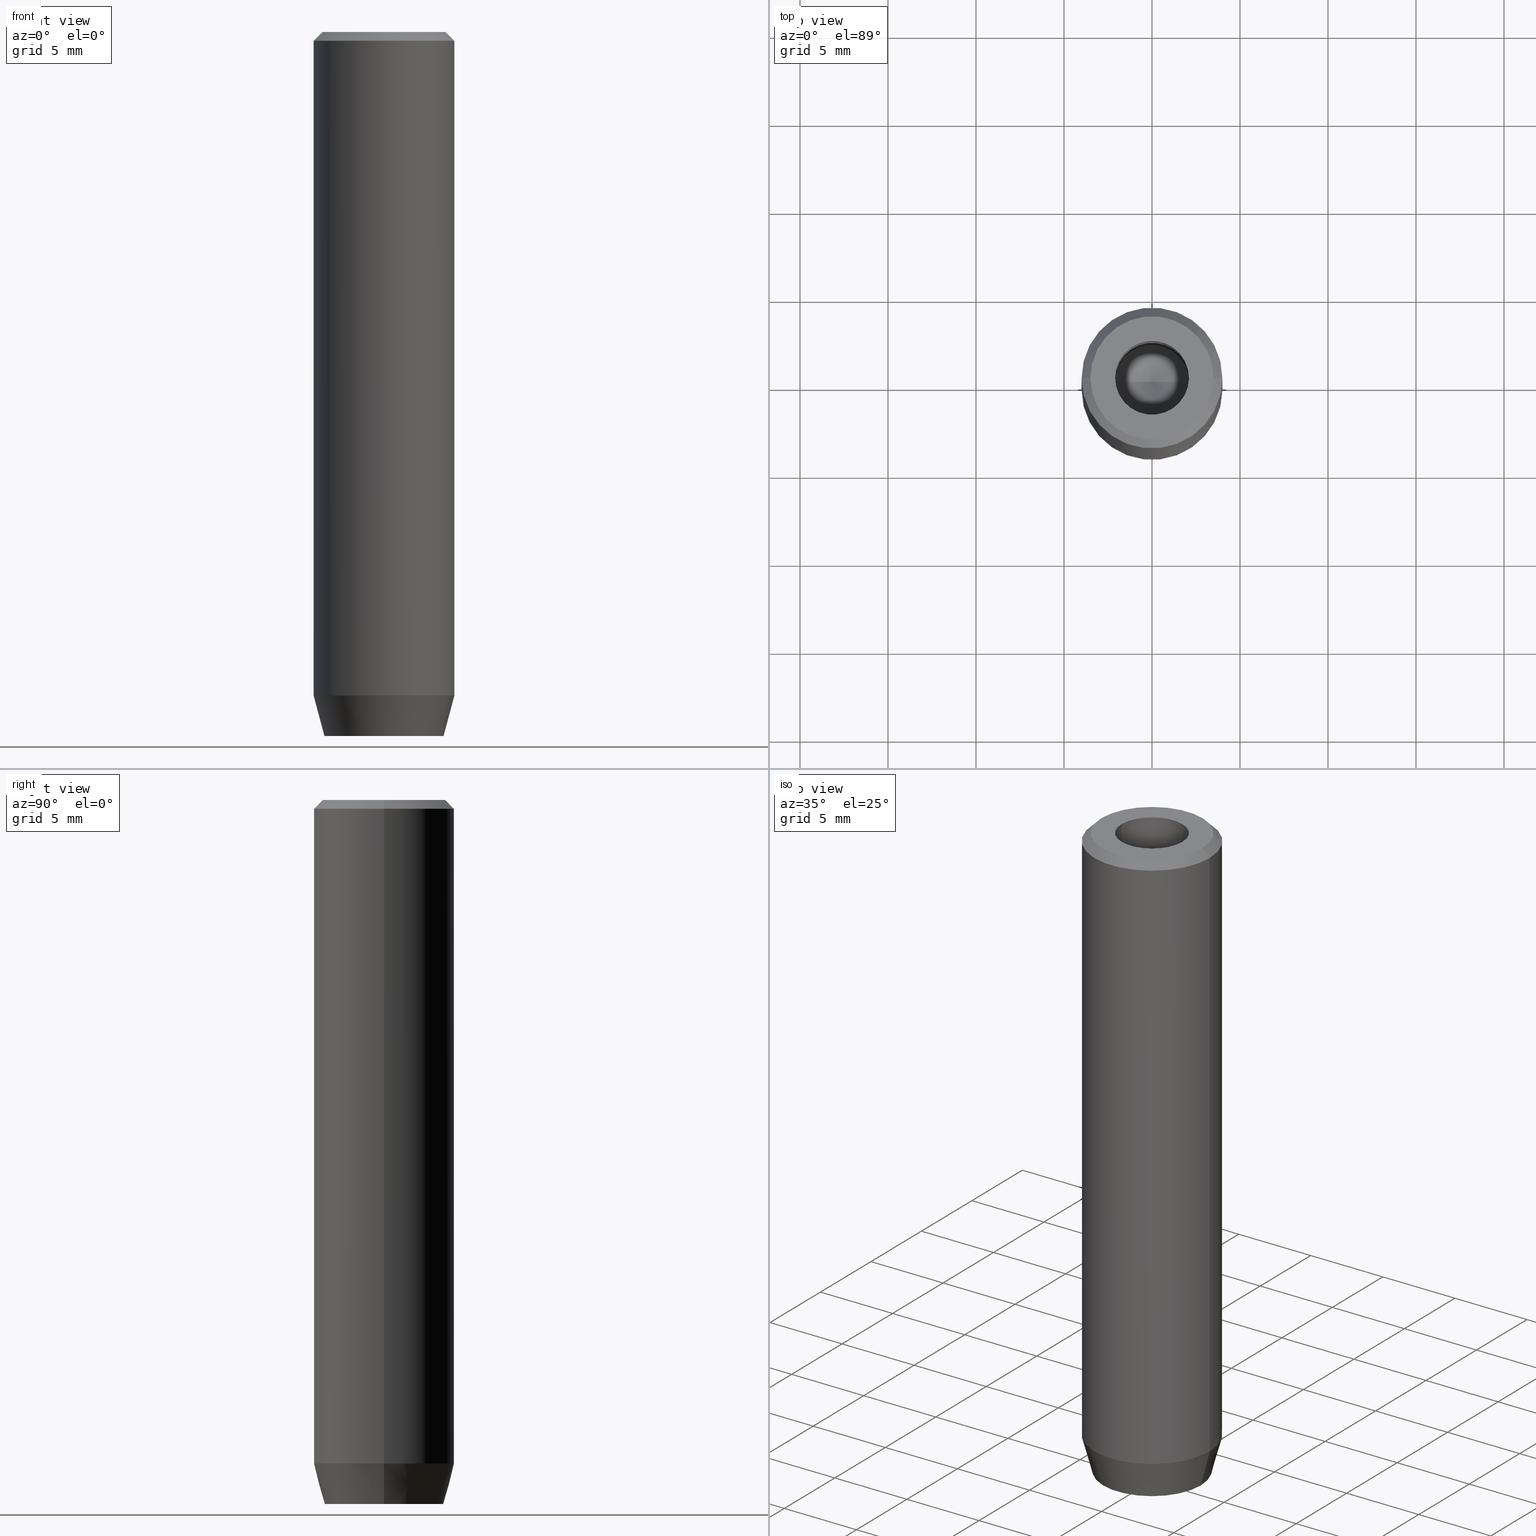
[diagram: canonical four-view strip — front | top / right | iso, engineering-drawing reading convention]
A machine part, canonical four-view strip (front | top / right | iso — engineering-drawing reading convention). The complete STEP part file that produces these views, byte-faithful:
ISO-10303-21;
HEADER;
FILE_DESCRIPTION (( 'STEP AP203' ),
    '1' );
FILE_NAME ('4024.STEP',
    '2024-01-02T23:09:57',
    ( '' ),
    ( '' ),
    'SwSTEP 2.0',
    'SolidWorks 2019',
    '' );
FILE_SCHEMA (( 'CONFIG_CONTROL_DESIGN' ));
ENDSEC;

DATA;
#1 = MECHANICAL_CONTEXT ( 'NONE', #405, 'mechanical' ) ;
#2 = ORIENTED_EDGE ( 'NONE', *, *, #181, .F. ) ;
#3 = PRODUCT ( '4024', '4024', '', ( #1 ) ) ;
#4 = EDGE_CURVE ( 'NONE', #275, #267, #427, .T. ) ;
#5 = CARTESIAN_POINT ( 'NONE',  ( 0.9999999999999997780, -1.732050807568878747, -37.20000000000000284 ) ) ;
#6 = ORIENTED_EDGE ( 'NONE', *, *, #553, .T. ) ;
#7 = SHAPE_DEFINITION_REPRESENTATION ( #325, #195 ) ;
#8 = DIRECTION ( 'NONE',  ( -0.000000000000000000, -0.000000000000000000, 1.000000000000000000 ) ) ;
#9 = ORIENTED_EDGE ( 'NONE', *, *, #339, .F. ) ;
#10 = VECTOR ( 'NONE', #544, 1000.000000000000114 ) ;
#11 = APPROVAL_PERSON_ORGANIZATION ( #485, #63, #286 ) ;
#12 = CARTESIAN_POINT ( 'NONE',  ( -1.999999999999998224, 1.126735949052866956E-15, -37.20000000000000284 ) ) ;
#13 = EDGE_CURVE ( 'NONE', #365, #407, #334, .T. ) ;
#14 = ORIENTED_EDGE ( 'NONE', *, *, #120, .T. ) ;
#15 = APPROVAL_DATE_TIME ( #460, #76 ) ;
#16 = DIRECTION ( 'NONE',  ( -0.000000000000000000, -0.000000000000000000, 1.000000000000000000 ) ) ;
#17 = COORDINATED_UNIVERSAL_TIME_OFFSET ( 1, 0, .AHEAD. ) ;
#18 = ORIENTED_EDGE ( 'NONE', *, *, #100, .T. ) ;
#19 = ADVANCED_FACE ( 'NONE', ( #465 ), #64, .F. ) ;
#20 = VECTOR ( 'NONE', #191, 1000.000000000000000 ) ;
#21 = CARTESIAN_POINT ( 'NONE',  ( 3.383716857408415102, 0.000000000000000000, -40.00000000000000000 ) ) ;
#22 = DIRECTION ( 'NONE',  ( -0.000000000000000000, -0.000000000000000000, -1.000000000000000000 ) ) ;
#23 = CARTESIAN_POINT ( 'NONE',  ( -1.000000000000000222, -1.732050807568877637, -37.20000000000000284 ) ) ;
#24 = CARTESIAN_POINT ( 'NONE',  ( 2.000000000000000888, -1.154700538379252572, -37.20000000000000284 ) ) ;
#25 = AXIS2_PLACEMENT_3D ( 'NONE', #497, #189, #538 ) ;
#26 = CARTESIAN_POINT ( 'NONE',  ( 2.099999999999998757, 0.000000000000000000, -1.990051048614449116E-16 ) ) ;
#27 = CC_DESIGN_DATE_AND_TIME_ASSIGNMENT ( #165, #335, ( #347 ) ) ;
#28 = PLANE ( 'NONE',  #344 ) ;
#29 = ORIENTED_EDGE ( 'NONE', *, *, #245, .T. ) ;
#30 = CARTESIAN_POINT ( 'NONE',  ( -4.000000000000000000, 4.898587196589412829E-16, -37.69999999999999574 ) ) ;
#31 = FACE_OUTER_BOUND ( 'NONE', #468, .T. ) ;
#32 = EDGE_LOOP ( 'NONE', ( #119, #324, #581, #350 ) ) ;
#33 = CARTESIAN_POINT ( 'NONE',  ( -1.999999999999998668, -1.154700538379252572, -40.00000000000000000 ) ) ;
#34 = CARTESIAN_POINT ( 'NONE',  ( 2.000000000000000888, 0.000000000000000000, -37.20000000000000284 ) ) ;
#35 = ORIENTED_EDGE ( 'NONE', *, *, #141, .T. ) ;
#36 = EDGE_CURVE ( 'NONE', #360, #455, #105, .T. ) ;
#37 = CARTESIAN_POINT ( 'NONE',  ( -2.099999999999998757, 2.571758278209439985E-16, -1.990051048614449116E-16 ) ) ;
#38 = AXIS2_PLACEMENT_3D ( 'NONE', #135, #319, #322 ) ;
#39 = CARTESIAN_POINT ( 'NONE',  ( 0.000000000000000000, 0.000000000000000000, 0.000000000000000000 ) ) ;
#40 = VERTEX_POINT ( 'NONE', #150 ) ;
#41 = PERSON_AND_ORGANIZATION_ROLE ( 'classification_officer' ) ;
#42 = CARTESIAN_POINT ( 'NONE',  ( -1.000000000000000222, -1.732050807568877637, -40.00000000000000000 ) ) ;
#43 = DIRECTION ( 'NONE',  ( 0.000000000000000000, 0.000000000000000000, 1.000000000000000000 ) ) ;
#44 = ORIENTED_EDGE ( 'NONE', *, *, #205, .F. ) ;
#45 = CARTESIAN_POINT ( 'NONE',  ( -3.383716857408415102, 4.521222607617784483E-16, -40.00000000000000000 ) ) ;
#46 = ORIENTED_EDGE ( 'NONE', *, *, #51, .T. ) ;
#47 = PERSON_AND_ORGANIZATION ( #67, #294 ) ;
#48 = CARTESIAN_POINT ( 'NONE',  ( 4.000000000000000000, 0.000000000000000000, 0.000000000000000000 ) ) ;
#49 = APPLICATION_PROTOCOL_DEFINITION ( 'international standard', 'config_control_design', 1994, #405 ) ;
#50 = ORIENTED_EDGE ( 'NONE', *, *, #311, .T. ) ;
#51 = EDGE_CURVE ( 'NONE', #262, #111, #400, .T. ) ;
#52 = AXIS2_PLACEMENT_3D ( 'NONE', #272, #182, #137 ) ;
#53 = DIRECTION ( 'NONE',  ( -0.000000000000000000, -0.000000000000000000, 1.000000000000000000 ) ) ;
#54 = APPROVAL_STATUS ( 'not_yet_approved' ) ;
#55 = ORIENTED_EDGE ( 'NONE', *, *, #251, .F. ) ;
#56 = CYLINDRICAL_SURFACE ( 'NONE', #25, 2.099999999999997868 ) ;
#57 = VERTEX_POINT ( 'NONE', #21 ) ;
#58 = ADVANCED_FACE ( 'NONE', ( #473 ), #380, .F. ) ;
#59 = DIRECTION ( 'NONE',  ( -1.000000000000000000, 5.633679745264339711E-16, 0.000000000000000000 ) ) ;
#60 = PERSON_AND_ORGANIZATION ( #67, #294 ) ;
#61 = EDGE_LOOP ( 'NONE', ( #277, #295, #147, #458 ) ) ;
#62 = VECTOR ( 'NONE', #352, 1000.000000000000000 ) ;
#63 = APPROVAL ( #481, 'NEUR�EN�' ) ;
#64 = PLANE ( 'NONE',  #140 ) ;
#65 = APPROVAL_STATUS ( 'not_yet_approved' ) ;
#66 = LINE ( 'NONE', #248, #510 ) ;
#67 = PERSON ( 'NEUR�EN�', 'NEUR�EN�', 'NEUR�EN�', ('NEUR�EN�'), ('NEUR�EN�'), ('NEUR�EN�') ) ;
#68 = DIRECTION ( 'NONE',  ( 0.000000000000000000, 0.000000000000000000, -1.000000000000000000 ) ) ;
#69 = DIRECTION ( 'NONE',  ( -0.000000000000000000, -0.000000000000000000, 1.000000000000000000 ) ) ;
#70 = CARTESIAN_POINT ( 'NONE',  ( -4.000000000000000000, 4.898587196589412829E-16, 0.000000000000000000 ) ) ;
#71 = EDGE_CURVE ( 'NONE', #479, #455, #343, .T. ) ;
#72 = CARTESIAN_POINT ( 'NONE',  ( 4.000000000000000000, 0.000000000000000000, -37.69999999999999574 ) ) ;
#73 = PERSON_AND_ORGANIZATION ( #67, #294 ) ;
#74 = VECTOR ( 'NONE', #290, 1000.000000000000000 ) ;
#75 = AXIS2_PLACEMENT_3D ( 'NONE', #12, #59, #441 ) ;
#76 = APPROVAL ( #65, 'NEUR�EN�' ) ;
#77 = DIRECTION ( 'NONE',  ( 1.000000000000000000, 0.000000000000000000, 0.000000000000000000 ) ) ;
#78 = CARTESIAN_POINT ( 'NONE',  ( -1.999999999999998224, 1.126735949052866956E-15, -40.00000000000000000 ) ) ;
#79 = ORIENTED_EDGE ( 'NONE', *, *, #396, .T. ) ;
#80 = DIRECTION ( 'NONE',  ( -0.000000000000000000, -0.000000000000000000, 1.000000000000000000 ) ) ;
#81 = DIRECTION ( 'NONE',  ( 0.8660254037844385966, -0.5000000000000001110, 0.000000000000000000 ) ) ;
#82 = EDGE_CURVE ( 'NONE', #234, #111, #206, .T. ) ;
#83 = DIRECTION ( 'NONE',  ( 1.000000000000000000, 0.000000000000000000, 0.000000000000000000 ) ) ;
#84 = CYLINDRICAL_SURFACE ( 'NONE', #87, 4.000000000000000000 ) ;
#85 = EDGE_LOOP ( 'NONE', ( #138, #439 ) ) ;
#86 = DIRECTION ( 'NONE',  ( -0.000000000000000000, -0.000000000000000000, 1.000000000000000000 ) ) ;
#87 = AXIS2_PLACEMENT_3D ( 'NONE', #213, #161, #118 ) ;
#88 = CARTESIAN_POINT ( 'NONE',  ( 1.000000000000000444, 1.732050807568877637, -40.00000000000000000 ) ) ;
#89 = AXIS2_PLACEMENT_3D ( 'NONE', #313, #535, #349 ) ;
#90 = CARTESIAN_POINT ( 'NONE',  ( 2.099999999999996980, 0.000000000000000000, -12.50000000000000000 ) ) ;
#91 = DIRECTION ( 'NONE',  ( 1.000000000000000000, 0.000000000000000000, 0.000000000000000000 ) ) ;
#92 = ORIENTED_EDGE ( 'NONE', *, *, #100, .F. ) ;
#93 = EDGE_CURVE ( 'NONE', #224, #407, #509, .T. ) ;
#94 = CARTESIAN_POINT ( 'NONE',  ( 1.000000000000000444, 1.732050807568877637, -37.20000000000000284 ) ) ;
#95 = ORIENTED_EDGE ( 'NONE', *, *, #366, .T. ) ;
#96 = DIRECTION ( 'NONE',  ( 0.000000000000000000, -1.000000000000000000, 0.000000000000000000 ) ) ;
#97 = ORIENTED_EDGE ( 'NONE', *, *, #114, .T. ) ;
#98 = CYLINDRICAL_SURFACE ( 'NONE', #293, 4.000000000000000000 ) ;
#99 = ORIENTED_EDGE ( 'NONE', *, *, #396, .F. ) ;
#100 = EDGE_CURVE ( 'NONE', #504, #224, #66, .T. ) ;
#101 = DIRECTION ( 'NONE',  ( -0.000000000000000000, -0.000000000000000000, -1.000000000000000000 ) ) ;
#102 = ORIENTED_EDGE ( 'NONE', *, *, #537, .F. ) ;
#103 = MANIFOLD_SOLID_BREP ( 'Vrt�k z�vitn�ku pro M5 z�vit1', #540 ) ;
#104 = CARTESIAN_POINT ( 'NONE',  ( -1.999999999999997780, 1.154700538379253238, -37.20000000000000284 ) ) ;
#105 = LINE ( 'NONE', #514, #409 ) ;
#106 = LOCAL_TIME ( 0, 9, 57.00000000000000000, #130 ) ;
#107 = AXIS2_PLACEMENT_3D ( 'NONE', #34, #432, #309 ) ;
#108 = ORIENTED_EDGE ( 'NONE', *, *, #366, .F. ) ;
#109 = ADVANCED_FACE ( 'NONE', ( #200 ), #152, .F. ) ;
#110 = VERTEX_POINT ( 'NONE', #26 ) ;
#111 = VERTEX_POINT ( 'NONE', #306 ) ;
#112 = CIRCLE ( 'NONE', #327, 2.099999999999996980 ) ;
#113 = ORIENTED_EDGE ( 'NONE', *, *, #278, .F. ) ;
#114 = EDGE_CURVE ( 'NONE', #284, #214, #301, .T. ) ;
#115 = LINE ( 'NONE', #72, #250 ) ;
#116 = EDGE_LOOP ( 'NONE', ( #35, #184, #452, #395 ) ) ;
#117 = CARTESIAN_POINT ( 'NONE',  ( -1.999999999999998224, 1.126735949052866956E-15, -37.20000000000000284 ) ) ;
#118 = DIRECTION ( 'NONE',  ( 1.000000000000000000, 0.000000000000000000, 0.000000000000000000 ) ) ;
#119 = ORIENTED_EDGE ( 'NONE', *, *, #278, .T. ) ;
#120 = EDGE_CURVE ( 'NONE', #247, #229, #303, .T. ) ;
#121 = CARTESIAN_POINT ( 'NONE',  ( 0.000000000000000000, 0.000000000000000000, -37.20000000000000284 ) ) ;
#122 = DIRECTION ( 'NONE',  ( -0.000000000000000000, -0.000000000000000000, 1.000000000000000000 ) ) ;
#123 = ORIENTED_EDGE ( 'NONE', *, *, #498, .T. ) ;
#124 = CALENDAR_DATE ( 2024, 3, 1 ) ;
#125 = CARTESIAN_POINT ( 'NONE',  ( 0.000000000000000000, 0.000000000000000000, -40.00000000000000000 ) ) ;
#126 = CC_DESIGN_PERSON_AND_ORGANIZATION_ASSIGNMENT ( #60, #421, ( #565 ) ) ;
#127 = CARTESIAN_POINT ( 'NONE',  ( 2.099999999999997868, 0.000000000000000000, 0.000000000000000000 ) ) ;
#128 = DIRECTION ( 'NONE',  ( 1.000000000000000000, 0.000000000000000000, 0.000000000000000000 ) ) ;
#129 = PLANE ( 'NONE',  #107 ) ;
#130 = COORDINATED_UNIVERSAL_TIME_OFFSET ( 1, 0, .AHEAD. ) ;
#131 = LINE ( 'NONE', #48, #144 ) ;
#132 = VECTOR ( 'NONE', #96, 1000.000000000000000 ) ;
#133 = EDGE_LOOP ( 'NONE', ( #561, #44, #376, #559 ) ) ;
#134 = CC_DESIGN_PERSON_AND_ORGANIZATION_ASSIGNMENT ( #467, #246, ( #347 ) ) ;
#135 = CARTESIAN_POINT ( 'NONE',  ( 0.000000000000000000, 0.000000000000000000, -37.69999999999999574 ) ) ;
#136 = ORIENTED_EDGE ( 'NONE', *, *, #578, .T. ) ;
#137 = DIRECTION ( 'NONE',  ( 1.000000000000000000, 0.000000000000000000, 0.000000000000000000 ) ) ;
#138 = ORIENTED_EDGE ( 'NONE', *, *, #141, .F. ) ;
#139 = CARTESIAN_POINT ( 'NONE',  ( 3.500000000000003109, 4.286263797015740046E-16, 0.000000000000000000 ) ) ;
#140 = AXIS2_PLACEMENT_3D ( 'NONE', #23, #156, #424 ) ;
#141 = EDGE_CURVE ( 'NONE', #57, #371, #491, .T. ) ;
#142 =( NAMED_UNIT ( * ) PLANE_ANGLE_UNIT ( ) SI_UNIT ( $, .RADIAN. ) );
#143 = ORIENTED_EDGE ( 'NONE', *, *, #578, .F. ) ;
#144 = VECTOR ( 'NONE', #239, 1000.000000000000000 ) ;
#145 = APPROVAL_PERSON_ORGANIZATION ( #73, #76, #423 ) ;
#146 = LINE ( 'NONE', #505, #353 ) ;
#147 = ORIENTED_EDGE ( 'NONE', *, *, #560, .T. ) ;
#148 = CC_DESIGN_DATE_AND_TIME_ASSIGNMENT ( #448, #230, ( #577 ) ) ;
#149 = LINE ( 'NONE', #104, #211 ) ;
#150 = CARTESIAN_POINT ( 'NONE',  ( -1.999999999999997780, 1.154700538379253238, -37.20000000000000284 ) ) ;
#151 = EDGE_LOOP ( 'NONE', ( #329, #554, #381, #282 ) ) ;
#152 = CONICAL_SURFACE ( 'NONE', #477, 2.099999999999996980, 1.029744258676653201 ) ;
#153 = CONICAL_SURFACE ( 'NONE', #314, 3.500000000000003109, 0.7853981633974517207 ) ;
#154 = EDGE_CURVE ( 'NONE', #371, #234, #355, .T. ) ;
#155 = DIRECTION ( 'NONE',  ( -0.000000000000000000, -0.000000000000000000, -1.000000000000000000 ) ) ;
#156 = DIRECTION ( 'NONE',  ( -0.5000000000000000000, -0.8660254037844387076, 0.000000000000000000 ) ) ;
#157 = ORIENTED_EDGE ( 'NONE', *, *, #260, .T. ) ;
#158 = ADVANCED_FACE ( 'NONE', ( #207, #486 ), #567, .T. ) ;
#159 = VECTOR ( 'NONE', #168, 1000.000000000000000 ) ;
#160 = DIRECTION ( 'NONE',  ( 5.633679745264339711E-16, 1.000000000000000000, 0.000000000000000000 ) ) ;
#161 = DIRECTION ( 'NONE',  ( -0.000000000000000000, -0.000000000000000000, 1.000000000000000000 ) ) ;
#162 = FACE_OUTER_BOUND ( 'NONE', #399, .T. ) ;
#163 = DIRECTION ( 'NONE',  ( -0.8660254037844387076, 0.5000000000000001110, 0.000000000000000000 ) ) ;
#164 = VERTEX_POINT ( 'NONE', #33 ) ;
#165 = DATE_AND_TIME ( #508, #209 ) ;
#166 = PLANE ( 'NONE',  #501 ) ;
#167 = DESIGN_CONTEXT ( 'detailed design', #169, 'design' ) ;
#168 = DIRECTION ( 'NONE',  ( -0.8571673007021116675, 1.049727191138617833E-16, 0.5150380749100552658 ) ) ;
#169 = APPLICATION_CONTEXT ( 'configuration controlled 3d designs of mechanical parts and assemblies' ) ;
#170 = CIRCLE ( 'NONE', #256, 4.000000000000000000 ) ;
#171 = EDGE_CURVE ( 'NONE', #371, #57, #502, .T. ) ;
#172 = VECTOR ( 'NONE', #259, 1000.000000000000000 ) ;
#173 = PLANE ( 'NONE',  #244 ) ;
#174 = LINE ( 'NONE', #78, #453 ) ;
#175 = VERTEX_POINT ( 'NONE', #534 ) ;
#176 = CARTESIAN_POINT ( 'NONE',  ( 0.000000000000000000, 0.000000000000000000, 0.000000000000000000 ) ) ;
#177 = CARTESIAN_POINT ( 'NONE',  ( 0.000000000000000000, 2.309401076758503812, -40.00000000000000000 ) ) ;
#178 = ORIENTED_EDGE ( 'NONE', *, *, #300, .T. ) ;
#179 = DIRECTION ( 'NONE',  ( 0.8571673007021116675, 0.000000000000000000, 0.5150380749100552658 ) ) ;
#180 =( NAMED_UNIT ( * ) SI_UNIT ( $, .STERADIAN. ) SOLID_ANGLE_UNIT ( ) );
#181 = EDGE_CURVE ( 'NONE', #175, #40, #573, .T. ) ;
#182 = DIRECTION ( 'NONE',  ( -0.000000000000000000, -0.000000000000000000, 1.000000000000000000 ) ) ;
#183 = AXIS2_PLACEMENT_3D ( 'NONE', #566, #122, #568 ) ;
#184 = ORIENTED_EDGE ( 'NONE', *, *, #154, .T. ) ;
#185 = CC_DESIGN_APPROVAL ( #63, ( #577 ) ) ;
#186 = CARTESIAN_POINT ( 'NONE',  ( 0.000000000000000000, 0.000000000000000000, 0.000000000000000000 ) ) ;
#187 = ORIENTED_EDGE ( 'NONE', *, *, #36, .F. ) ;
#188 = EDGE_CURVE ( 'NONE', #471, #234, #170, .T. ) ;
#189 = DIRECTION ( 'NONE',  ( -0.000000000000000000, -0.000000000000000000, 1.000000000000000000 ) ) ;
#190 = ORIENTED_EDGE ( 'NONE', *, *, #426, .F. ) ;
#191 = DIRECTION ( 'NONE',  ( 0.8660254037844385966, -0.5000000000000001110, 0.000000000000000000 ) ) ;
#192 = ORIENTED_EDGE ( 'NONE', *, *, #300, .F. ) ;
#193 = VECTOR ( 'NONE', #333, 1000.000000000000114 ) ;
#194 = AXIS2_PLACEMENT_3D ( 'NONE', #522, #302, #475 ) ;
#195 = ADVANCED_BREP_SHAPE_REPRESENTATION ( '4024', ( #103, #305 ), #315 ) ;
#196 = CARTESIAN_POINT ( 'NONE',  ( 2.168404344971008868E-16, -2.309401076758503812, -40.00000000000000000 ) ) ;
#197 = VERTEX_POINT ( 'NONE', #443 ) ;
#198 = ORIENTED_EDGE ( 'NONE', *, *, #171, .T. ) ;
#199 = ADVANCED_FACE ( 'NONE', ( #531, #162 ), #173, .T. ) ;
#200 = FACE_OUTER_BOUND ( 'NONE', #539, .T. ) ;
#201 = CALENDAR_DATE ( 2024, 3, 1 ) ;
#202 = AXIS2_PLACEMENT_3D ( 'NONE', #125, #86, #215 ) ;
#203 = COORDINATED_UNIVERSAL_TIME_OFFSET ( 1, 0, .AHEAD. ) ;
#204 = EDGE_LOOP ( 'NONE', ( #572, #494, #331, #518 ) ) ;
#205 = EDGE_CURVE ( 'NONE', #229, #247, #442, .T. ) ;
#206 = LINE ( 'NONE', #70, #362 ) ;
#207 = FACE_BOUND ( 'NONE', #273, .T. ) ;
#208 = DIRECTION ( 'NONE',  ( 0.8660254037844388186, 0.4999999999999996669, 0.000000000000000000 ) ) ;
#209 = LOCAL_TIME ( 0, 9, 57.00000000000000000, #203 ) ;
#210 = VECTOR ( 'NONE', #22, 1000.000000000000000 ) ;
#211 = VECTOR ( 'NONE', #377, 1000.000000000000000 ) ;
#212 = DIRECTION ( 'NONE',  ( 1.000000000000000000, 0.000000000000000000, 0.000000000000000000 ) ) ;
#213 = CARTESIAN_POINT ( 'NONE',  ( 0.000000000000000000, 0.000000000000000000, 0.000000000000000000 ) ) ;
#214 = VERTEX_POINT ( 'NONE', #37 ) ;
#215 = DIRECTION ( 'NONE',  ( 1.000000000000000000, 0.000000000000000000, 0.000000000000000000 ) ) ;
#216 = FACE_OUTER_BOUND ( 'NONE', #133, .T. ) ;
#217 = EDGE_CURVE ( 'NONE', #111, #262, #269, .T. ) ;
#218 = DIRECTION ( 'NONE',  ( -0.000000000000000000, -0.000000000000000000, 1.000000000000000000 ) ) ;
#219 = CARTESIAN_POINT ( 'NONE',  ( -1.000000000000000444, 1.732050807568877637, -37.20000000000000284 ) ) ;
#220 = ORIENTED_EDGE ( 'NONE', *, *, #93, .F. ) ;
#221 = VECTOR ( 'NONE', #160, 1000.000000000000000 ) ;
#222 = CARTESIAN_POINT ( 'NONE',  ( 0.000000000000000000, 0.000000000000000000, 0.000000000000000000 ) ) ;
#223 = CARTESIAN_POINT ( 'NONE',  ( 0.000000000000000000, 0.000000000000000000, 0.000000000000000000 ) ) ;
#224 = VERTEX_POINT ( 'NONE', #489 ) ;
#225 = ADVANCED_FACE ( 'NONE', ( #271 ), #166, .F. ) ;
#226 = CARTESIAN_POINT ( 'NONE',  ( -2.099999999999996980, 2.571758278209438013E-16, -12.50000000000000000 ) ) ;
#227 = ORIENTED_EDGE ( 'NONE', *, *, #93, .T. ) ;
#228 = LINE ( 'NONE', #139, #10 ) ;
#229 = VERTEX_POINT ( 'NONE', #527 ) ;
#230 = DATE_TIME_ROLE ( 'classification_date' ) ;
#231 = VECTOR ( 'NONE', #288, 1000.000000000000114 ) ;
#232 = CARTESIAN_POINT ( 'NONE',  ( 2.000000000000000888, 1.154700538379251462, -40.00000000000000000 ) ) ;
#233 = CIRCLE ( 'NONE', #401, 2.099999999999996980 ) ;
#234 = VERTEX_POINT ( 'NONE', #30 ) ;
#235 = ADVANCED_FACE ( 'NONE', ( #254 ), #521, .T. ) ;
#236 = DIRECTION ( 'NONE',  ( 1.000000000000000000, 0.000000000000000000, 0.000000000000000000 ) ) ;
#237 = APPROVAL_ROLE ( '' ) ;
#238 = ORIENTED_EDGE ( 'NONE', *, *, #291, .T. ) ;
#239 = DIRECTION ( 'NONE',  ( -0.000000000000000000, -0.000000000000000000, 1.000000000000000000 ) ) ;
#240 = APPLICATION_PROTOCOL_DEFINITION ( 'international standard', 'config_control_design', 1994, #169 ) ;
#241 = EDGE_LOOP ( 'NONE', ( #525, #97, #95, #298 ) ) ;
#242 = LINE ( 'NONE', #459, #193 ) ;
#243 = ORIENTED_EDGE ( 'NONE', *, *, #321, .T. ) ;
#244 = AXIS2_PLACEMENT_3D ( 'NONE', #176, #348, #570 ) ;
#245 = EDGE_CURVE ( 'NONE', #57, #471, #115, .T. ) ;
#246 = PERSON_AND_ORGANIZATION_ROLE ( 'creator' ) ;
#247 = VERTEX_POINT ( 'NONE', #582 ) ;
#248 = CARTESIAN_POINT ( 'NONE',  ( 2.000000000000000888, -1.154700538379252572, -37.20000000000000284 ) ) ;
#249 = ORIENTED_EDGE ( 'NONE', *, *, #205, .T. ) ;
#250 = VECTOR ( 'NONE', #433, 1000.000000000000000 ) ;
#251 = EDGE_CURVE ( 'NONE', #267, #224, #328, .T. ) ;
#252 = ORIENTED_EDGE ( 'NONE', *, *, #82, .T. ) ;
#253 = DIRECTION ( 'NONE',  ( 0.8660254037844385966, 0.5000000000000001110, 0.000000000000000000 ) ) ;
#254 = FACE_OUTER_BOUND ( 'NONE', #447, .T. ) ;
#255 = LINE ( 'NONE', #392, #418 ) ;
#256 = AXIS2_PLACEMENT_3D ( 'NONE', #351, #440, #128 ) ;
#257 = PERSON_AND_ORGANIZATION_ROLE ( 'creator' ) ;
#258 = CC_DESIGN_SECURITY_CLASSIFICATION ( #577, ( #565 ) ) ;
#259 = DIRECTION ( 'NONE',  ( -0.2588190451025214056, 3.169619151431772953E-17, 0.9659258262890680902 ) ) ;
#260 = EDGE_CURVE ( 'NONE', #284, #197, #112, .T. ) ;
#261 = FACE_OUTER_BOUND ( 'NONE', #500, .T. ) ;
#262 = VERTEX_POINT ( 'NONE', #493 ) ;
#263 = DIRECTION ( 'NONE',  ( -1.000000000000000000, 0.000000000000000000, -0.000000000000000000 ) ) ;
#264 = DIRECTION ( 'NONE',  ( -1.000000000000000000, 0.000000000000000000, 0.000000000000000000 ) ) ;
#265 = DIRECTION ( 'NONE',  ( 1.000000000000000000, 0.000000000000000000, 0.000000000000000000 ) ) ;
#266 = DIRECTION ( 'NONE',  ( 0.4999999999999996669, -0.8660254037844388186, 0.000000000000000000 ) ) ;
#267 = VERTEX_POINT ( 'NONE', #232 ) ;
#268 = ADVANCED_FACE ( 'NONE', ( #457 ), #56, .F. ) ;
#269 = CIRCLE ( 'NONE', #586, 4.000000000000000000 ) ;
#270 = LOCAL_TIME ( 0, 9, 57.00000000000000000, #17 ) ;
#271 = FACE_OUTER_BOUND ( 'NONE', #204, .T. ) ;
#272 = CARTESIAN_POINT ( 'NONE',  ( 0.000000000000000000, 0.000000000000000000, -1.990051048614449116E-16 ) ) ;
#273 = EDGE_LOOP ( 'NONE', ( #187, #533, #113, #220, #55, #336 ) ) ;
#274 = DIRECTION ( 'NONE',  ( 0.5000000000000001110, 0.8660254037844385966, -0.000000000000000000 ) ) ;
#275 = VERTEX_POINT ( 'NONE', #359 ) ;
#276 = LINE ( 'NONE', #279, #20 ) ;
#277 = ORIENTED_EDGE ( 'NONE', *, *, #114, .F. ) ;
#278 = EDGE_CURVE ( 'NONE', #407, #164, #587, .T. ) ;
#279 = CARTESIAN_POINT ( 'NONE',  ( 1.000000000000000444, 1.732050807568877637, -37.20000000000000284 ) ) ;
#280 = ORIENTED_EDGE ( 'NONE', *, *, #339, .T. ) ;
#281 = CARTESIAN_POINT ( 'NONE',  ( 2.000000000000000888, 0.000000000000000000, -40.00000000000000000 ) ) ;
#282 = ORIENTED_EDGE ( 'NONE', *, *, #71, .T. ) ;
#283 = CC_DESIGN_PERSON_AND_ORGANIZATION_ASSIGNMENT ( #323, #499, ( #3 ) ) ;
#284 = VERTEX_POINT ( 'NONE', #226 ) ;
#285 = CIRCLE ( 'NONE', #183, 2.099999999999998757 ) ;
#286 = APPROVAL_ROLE ( '' ) ;
#287 = CC_DESIGN_APPROVAL ( #76, ( #565 ) ) ;
#288 = DIRECTION ( 'NONE',  ( -0.8660254037844388186, -0.4999999999999996114, 0.000000000000000000 ) ) ;
#289 = PERSON_AND_ORGANIZATION ( #67, #294 ) ;
#290 = DIRECTION ( 'NONE',  ( -0.000000000000000000, -0.000000000000000000, -1.000000000000000000 ) ) ;
#291 = EDGE_CURVE ( 'NONE', #197, #284, #233, .T. ) ;
#292 = DIRECTION ( 'NONE',  ( 1.000000000000000000, 0.000000000000000000, 0.000000000000000000 ) ) ;
#293 = AXIS2_PLACEMENT_3D ( 'NONE', #186, #583, #454 ) ;
#294 = ORGANIZATION ( 'NEUR�EN�', 'NEUR�EN�', '' ) ;
#295 = ORIENTED_EDGE ( 'NONE', *, *, #291, .F. ) ;
#296 = CARTESIAN_POINT ( 'NONE',  ( -2.099999999999997868, 2.571758278209438999E-16, 0.000000000000000000 ) ) ;
#297 = CARTESIAN_POINT ( 'NONE',  ( 2.000000000000000888, 0.000000000000000000, -37.20000000000000284 ) ) ;
#298 = ORIENTED_EDGE ( 'NONE', *, *, #560, .F. ) ;
#299 = CALENDAR_DATE ( 2024, 3, 1 ) ;
#300 = EDGE_CURVE ( 'NONE', #471, #262, #131, .T. ) ;
#301 = LINE ( 'NONE', #296, #585 ) ;
#302 = DIRECTION ( 'NONE',  ( -0.000000000000000000, -0.000000000000000000, 1.000000000000000000 ) ) ;
#303 = CIRCLE ( 'NONE', #528, 3.500000000000003109 ) ;
#304 = VECTOR ( 'NONE', #179, 1000.000000000000000 ) ;
#305 = AXIS2_PLACEMENT_3D ( 'NONE', #451, #43, #91 ) ;
#306 = CARTESIAN_POINT ( 'NONE',  ( -4.000000000000000000, 4.898587196589412829E-16, -0.4999999999999935052 ) ) ;
#307 = CARTESIAN_POINT ( 'NONE',  ( 0.9999999999999997780, -1.732050807568878747, -37.20000000000000284 ) ) ;
#308 = DIRECTION ( 'NONE',  ( -0.000000000000000000, -0.000000000000000000, 1.000000000000000000 ) ) ;
#309 = DIRECTION ( 'NONE',  ( -0.000000000000000000, 0.000000000000000000, -1.000000000000000000 ) ) ;
#310 = ORIENTED_EDGE ( 'NONE', *, *, #82, .F. ) ;
#311 = EDGE_CURVE ( 'NONE', #479, #275, #276, .T. ) ;
#312 = CARTESIAN_POINT ( 'NONE',  ( 0.000000000000000000, 0.000000000000000000, -0.4999999999999935052 ) ) ;
#313 = CARTESIAN_POINT ( 'NONE',  ( 0.000000000000000000, 0.000000000000000000, -37.69999999999999574 ) ) ;
#314 = AXIS2_PLACEMENT_3D ( 'NONE', #223, #529, #264 ) ;
#315 =( GEOMETRIC_REPRESENTATION_CONTEXT ( 3 ) GLOBAL_UNCERTAINTY_ASSIGNED_CONTEXT ( ( #574 ) ) GLOBAL_UNIT_ASSIGNED_CONTEXT ( ( #434, #142, #180 ) ) REPRESENTATION_CONTEXT ( 'NONE', 'WORKASPACE' ) );
#316 = CARTESIAN_POINT ( 'NONE',  ( -1.999999999999997780, 1.154700538379253238, -40.00000000000000000 ) ) ;
#317 = ORIENTED_EDGE ( 'NONE', *, *, #519, .T. ) ;
#318 = SECURITY_CLASSIFICATION_LEVEL ( 'unclassified' ) ;
#319 = DIRECTION ( 'NONE',  ( -0.000000000000000000, -0.000000000000000000, 1.000000000000000000 ) ) ;
#320 = ORIENTED_EDGE ( 'NONE', *, *, #217, .F. ) ;
#321 = EDGE_CURVE ( 'NONE', #247, #262, #228, .T. ) ;
#322 = DIRECTION ( 'NONE',  ( 1.000000000000000000, 0.000000000000000000, 0.000000000000000000 ) ) ;
#323 = PERSON_AND_ORGANIZATION ( #67, #294 ) ;
#324 = ORIENTED_EDGE ( 'NONE', *, *, #388, .F. ) ;
#325 = PRODUCT_DEFINITION_SHAPE ( 'NONE', 'NONE',  #347 ) ;
#326 = VECTOR ( 'NONE', #155, 1000.000000000000000 ) ;
#327 = AXIS2_PLACEMENT_3D ( 'NONE', #446, #546, #364 ) ;
#328 = LINE ( 'NONE', #281, #132 ) ;
#329 = ORIENTED_EDGE ( 'NONE', *, *, #456, .T. ) ;
#330 = FACE_OUTER_BOUND ( 'NONE', #241, .T. ) ;
#331 = ORIENTED_EDGE ( 'NONE', *, *, #526, .F. ) ;
#332 = ADVANCED_FACE ( 'NONE', ( #404 ), #98, .T. ) ;
#333 = DIRECTION ( 'NONE',  ( -0.7071067811865500152, 0.000000000000000000, -0.7071067811865451302 ) ) ;
#334 = LINE ( 'NONE', #517, #74 ) ;
#335 = DATE_TIME_ROLE ( 'creation_date' ) ;
#336 = ORIENTED_EDGE ( 'NONE', *, *, #456, .F. ) ;
#337 = CONICAL_SURFACE ( 'NONE', #480, 3.500000000000003109, 0.7853981633974517207 ) ;
#338 = APPROVAL_PERSON_ORGANIZATION ( #416, #408, #237 ) ;
#339 = EDGE_CURVE ( 'NONE', #547, #197, #373, .T. ) ;
#340 = DATE_AND_TIME ( #549, #462 ) ;
#341 = ORIENTED_EDGE ( 'NONE', *, *, #483, .T. ) ;
#342 = ORIENTED_EDGE ( 'NONE', *, *, #498, .F. ) ;
#343 = LINE ( 'NONE', #552, #210 ) ;
#344 = AXIS2_PLACEMENT_3D ( 'NONE', #307, #266, #208 ) ;
#345 = DIRECTION ( 'NONE',  ( -0.8660254037844385966, -0.5000000000000001110, 0.000000000000000000 ) ) ;
#346 = DIRECTION ( 'NONE',  ( 0.000000000000000000, -1.000000000000000000, 0.000000000000000000 ) ) ;
#347 = PRODUCT_DEFINITION ( 'NEZN�M�', '', #565, #167 ) ;
#348 = DIRECTION ( 'NONE',  ( 0.000000000000000000, -0.000000000000000000, 1.000000000000000000 ) ) ;
#349 = DIRECTION ( 'NONE',  ( 1.000000000000000000, 0.000000000000000000, 0.000000000000000000 ) ) ;
#350 = ORIENTED_EDGE ( 'NONE', *, *, #13, .T. ) ;
#351 = CARTESIAN_POINT ( 'NONE',  ( 0.000000000000000000, 0.000000000000000000, -37.69999999999999574 ) ) ;
#352 = DIRECTION ( 'NONE',  ( 0.8660254037844385966, 0.5000000000000001110, 0.000000000000000000 ) ) ;
#353 = VECTOR ( 'NONE', #101, 1000.000000000000000 ) ;
#354 = ADVANCED_FACE ( 'NONE', ( #330 ), #415, .F. ) ;
#355 = LINE ( 'NONE', #402, #172 ) ;
#356 = LINE ( 'NONE', #297, #363 ) ;
#357 = DIRECTION ( 'NONE',  ( 0.000000000000000000, 0.000000000000000000, -1.000000000000000000 ) ) ;
#358 = FACE_OUTER_BOUND ( 'NONE', #545, .T. ) ;
#359 = CARTESIAN_POINT ( 'NONE',  ( 2.000000000000000888, 1.154700538379251462, -37.20000000000000284 ) ) ;
#360 = VERTEX_POINT ( 'NONE', #316 ) ;
#361 = CIRCLE ( 'NONE', #194, 4.000000000000000000 ) ;
#362 = VECTOR ( 'NONE', #16, 1000.000000000000000 ) ;
#363 = VECTOR ( 'NONE', #346, 1000.000000000000000 ) ;
#364 = DIRECTION ( 'NONE',  ( 1.000000000000000000, 0.000000000000000000, 0.000000000000000000 ) ) ;
#365 = VERTEX_POINT ( 'NONE', #412 ) ;
#366 = EDGE_CURVE ( 'NONE', #214, #110, #558, .T. ) ;
#367 = DIRECTION ( 'NONE',  ( 1.000000000000000000, 0.000000000000000000, 0.000000000000000000 ) ) ;
#368 = ORIENTED_EDGE ( 'NONE', *, *, #181, .T. ) ;
#369 = CC_DESIGN_PERSON_AND_ORGANIZATION_ASSIGNMENT ( #289, #257, ( #565 ) ) ;
#370 = PLANE ( 'NONE',  #563 ) ;
#371 = VERTEX_POINT ( 'NONE', #45 ) ;
#372 = VECTOR ( 'NONE', #419, 1000.000000000000114 ) ;
#373 = LINE ( 'NONE', #90, #304 ) ;
#374 = ADVANCED_FACE ( 'NONE', ( #542 ), #470, .T. ) ;
#375 = COORDINATED_UNIVERSAL_TIME_OFFSET ( 1, 0, .AHEAD. ) ;
#376 = ORIENTED_EDGE ( 'NONE', *, *, #426, .T. ) ;
#377 = DIRECTION ( 'NONE',  ( -0.000000000000000000, -0.000000000000000000, -1.000000000000000000 ) ) ;
#378 = ORIENTED_EDGE ( 'NONE', *, *, #388, .T. ) ;
#379 = CARTESIAN_POINT ( 'NONE',  ( 0.9999999999999997780, -1.732050807568878747, -40.00000000000000000 ) ) ;
#380 = CONICAL_SURFACE ( 'NONE', #463, 2.099999999999996980, 1.029744258676653201 ) ;
#381 = ORIENTED_EDGE ( 'NONE', *, *, #311, .F. ) ;
#382 = AXIS2_PLACEMENT_3D ( 'NONE', #222, #80, #265 ) ;
#383 = APPROVAL_DATE_TIME ( #515, #63 ) ;
#384 = ADVANCED_FACE ( 'NONE', ( #548 ), #370, .F. ) ;
#385 = DIRECTION ( 'NONE',  ( 1.000000000000000000, 0.000000000000000000, 0.000000000000000000 ) ) ;
#386 = CARTESIAN_POINT ( 'NONE',  ( 2.000000000000000888, 1.154700538379251462, -37.20000000000000284 ) ) ;
#387 = DIRECTION ( 'NONE',  ( -0.5000000000000001110, 0.8660254037844385966, 0.000000000000000000 ) ) ;
#388 = EDGE_CURVE ( 'NONE', #175, #164, #146, .T. ) ;
#389 = CARTESIAN_POINT ( 'NONE',  ( 4.000000000000000000, 0.000000000000000000, -37.69999999999999574 ) ) ;
#390 = AXIS2_PLACEMENT_3D ( 'NONE', #121, #482, #263 ) ;
#391 = DIRECTION ( 'NONE',  ( -0.000000000000000000, -0.000000000000000000, 1.000000000000000000 ) ) ;
#392 = CARTESIAN_POINT ( 'NONE',  ( -1.000000000000000222, -1.732050807568877637, -37.20000000000000284 ) ) ;
#393 = CARTESIAN_POINT ( 'NONE',  ( 0.000000000000000000, 0.000000000000000000, -40.00000000000000000 ) ) ;
#394 = LINE ( 'NONE', #438, #159 ) ;
#395 = ORIENTED_EDGE ( 'NONE', *, *, #245, .F. ) ;
#396 = EDGE_CURVE ( 'NONE', #504, #365, #410, .T. ) ;
#397 = DIRECTION ( 'NONE',  ( -1.000000000000000000, 0.000000000000000000, -0.000000000000000000 ) ) ;
#398 = DIRECTION ( 'NONE',  ( -1.000000000000000000, 0.000000000000000000, 0.000000000000000000 ) ) ;
#399 = EDGE_LOOP ( 'NONE', ( #249, #14 ) ) ;
#400 = CIRCLE ( 'NONE', #557, 4.000000000000000000 ) ;
#401 = AXIS2_PLACEMENT_3D ( 'NONE', #406, #53, #367 ) ;
#402 = CARTESIAN_POINT ( 'NONE',  ( -4.000000000000000000, 4.898587196589412829E-16, -37.69999999999999574 ) ) ;
#403 = FACE_OUTER_BOUND ( 'NONE', #536, .T. ) ;
#404 = FACE_OUTER_BOUND ( 'NONE', #413, .T. ) ;
#405 = APPLICATION_CONTEXT ( 'configuration controlled 3d designs of mechanical parts and assemblies' ) ;
#406 = CARTESIAN_POINT ( 'NONE',  ( 0.000000000000000000, 0.000000000000000000, -12.50000000000000000 ) ) ;
#407 = VERTEX_POINT ( 'NONE', #196 ) ;
#408 = APPROVAL ( #54, 'NEUR�EN�' ) ;
#409 = VECTOR ( 'NONE', #253, 1000.000000000000000 ) ;
#410 = LINE ( 'NONE', #5, #372 ) ;
#411 = EDGE_LOOP ( 'NONE', ( #317, #422, #2, #378 ) ) ;
#412 = CARTESIAN_POINT ( 'NONE',  ( 2.168404344971008868E-16, -2.309401076758503812, -37.20000000000000284 ) ) ;
#413 = EDGE_LOOP ( 'NONE', ( #310, #136, #178, #46 ) ) ;
#414 = EDGE_CURVE ( 'NONE', #40, #360, #149, .T. ) ;
#415 = CYLINDRICAL_SURFACE ( 'NONE', #464, 2.099999999999997868 ) ;
#416 = PERSON_AND_ORGANIZATION ( #67, #294 ) ;
#417 = ORIENTED_EDGE ( 'NONE', *, *, #188, .T. ) ;
#418 = VECTOR ( 'NONE', #163, 999.9999999999998863 ) ;
#419 = DIRECTION ( 'NONE',  ( -0.8660254037844388186, -0.4999999999999996114, 0.000000000000000000 ) ) ;
#420 = LOCAL_TIME ( 0, 9, 57.00000000000000000, #555 ) ;
#421 = PERSON_AND_ORGANIZATION_ROLE ( 'design_supplier' ) ;
#422 = ORIENTED_EDGE ( 'NONE', *, *, #414, .F. ) ;
#423 = APPROVAL_ROLE ( '' ) ;
#424 = DIRECTION ( 'NONE',  ( 0.8660254037844385966, -0.4999999999999999445, 0.000000000000000000 ) ) ;
#425 = DIRECTION ( 'NONE',  ( -0.000000000000000000, -0.000000000000000000, -1.000000000000000000 ) ) ;
#426 = EDGE_CURVE ( 'NONE', #229, #111, #242, .T. ) ;
#427 = LINE ( 'NONE', #386, #326 ) ;
#428 = VECTOR ( 'NONE', #81, 1000.000000000000000 ) ;
#429 = ORIENTED_EDGE ( 'NONE', *, *, #217, .T. ) ;
#430 = ADVANCED_FACE ( 'NONE', ( #551 ), #507, .F. ) ;
#431 = CARTESIAN_POINT ( 'NONE',  ( 0.000000000000000000, 0.000000000000000000, -12.50000000000000000 ) ) ;
#432 = DIRECTION ( 'NONE',  ( 1.000000000000000000, 0.000000000000000000, -0.000000000000000000 ) ) ;
#433 = DIRECTION ( 'NONE',  ( 0.2588190451025214056, 0.000000000000000000, 0.9659258262890680902 ) ) ;
#434 =( LENGTH_UNIT ( ) NAMED_UNIT ( * ) SI_UNIT ( .MILLI., .METRE. ) );
#435 = VECTOR ( 'NONE', #487, 1000.000000000000000 ) ;
#436 = CARTESIAN_POINT ( 'NONE',  ( -1.000000000000000444, 1.732050807568877637, -37.20000000000000284 ) ) ;
#437 = DIRECTION ( 'NONE',  ( 0.000000000000000000, 0.000000000000000000, -1.000000000000000000 ) ) ;
#438 = CARTESIAN_POINT ( 'NONE',  ( -2.099999999999996980, 2.571758278209438013E-16, -12.50000000000000000 ) ) ;
#439 = ORIENTED_EDGE ( 'NONE', *, *, #171, .F. ) ;
#440 = DIRECTION ( 'NONE',  ( -0.000000000000000000, -0.000000000000000000, 1.000000000000000000 ) ) ;
#441 = DIRECTION ( 'NONE',  ( -5.633679745264339711E-16, -1.000000000000000000, 0.000000000000000000 ) ) ;
#442 = CIRCLE ( 'NONE', #382, 3.500000000000003109 ) ;
#443 = CARTESIAN_POINT ( 'NONE',  ( 2.099999999999996980, 0.000000000000000000, -12.50000000000000000 ) ) ;
#444 = ORIENTED_EDGE ( 'NONE', *, *, #251, .T. ) ;
#445 = ADVANCED_FACE ( 'NONE', ( #490 ), #337, .T. ) ;
#446 = CARTESIAN_POINT ( 'NONE',  ( 0.000000000000000000, 0.000000000000000000, -12.50000000000000000 ) ) ;
#447 = EDGE_LOOP ( 'NONE', ( #506, #50, #6, #79, #341, #368 ) ) ;
#448 = DATE_AND_TIME ( #124, #106 ) ;
#449 = DIRECTION ( 'NONE',  ( -0.8660254037844385966, 0.5000000000000001110, 0.000000000000000000 ) ) ;
#450 = PRODUCT_RELATED_PRODUCT_CATEGORY ( 'detail', '', ( #3 ) ) ;
#451 = CARTESIAN_POINT ( 'NONE',  ( 0.000000000000000000, 0.000000000000000000, 0.000000000000000000 ) ) ;
#452 = ORIENTED_EDGE ( 'NONE', *, *, #188, .F. ) ;
#453 = VECTOR ( 'NONE', #478, 1000.000000000000000 ) ;
#454 = DIRECTION ( 'NONE',  ( 1.000000000000000000, 0.000000000000000000, 0.000000000000000000 ) ) ;
#455 = VERTEX_POINT ( 'NONE', #177 ) ;
#456 = EDGE_CURVE ( 'NONE', #455, #267, #524, .T. ) ;
#457 = FACE_OUTER_BOUND ( 'NONE', #61, .T. ) ;
#458 = ORIENTED_EDGE ( 'NONE', *, *, #537, .T. ) ;
#459 = CARTESIAN_POINT ( 'NONE',  ( -3.500000000000003109, 0.000000000000000000, 0.000000000000000000 ) ) ;
#460 = DATE_AND_TIME ( #299, #270 ) ;
#461 = EDGE_LOOP ( 'NONE', ( #102, #108 ) ) ;
#462 = LOCAL_TIME ( 0, 9, 57.00000000000000000, #375 ) ;
#463 = AXIS2_PLACEMENT_3D ( 'NONE', #431, #69, #385 ) ;
#464 = AXIS2_PLACEMENT_3D ( 'NONE', #495, #8, #236 ) ;
#465 = FACE_OUTER_BOUND ( 'NONE', #32, .T. ) ;
#466 = ADVANCED_FACE ( 'NONE', ( #358 ), #84, .T. ) ;
#467 = PERSON_AND_ORGANIZATION ( #67, #294 ) ;
#468 = EDGE_LOOP ( 'NONE', ( #227, #550, #99, #18 ) ) ;
#469 = CARTESIAN_POINT ( 'NONE',  ( 0.000000000000000000, 0.000000000000000000, -0.4999999999999935052 ) ) ;
#470 = CONICAL_SURFACE ( 'NONE', #38, 4.000000000000000000, 0.2617993877991501295 ) ;
#471 = VERTEX_POINT ( 'NONE', #389 ) ;
#472 = ADVANCED_FACE ( 'NONE', ( #31 ), #28, .F. ) ;
#473 = FACE_OUTER_BOUND ( 'NONE', #496, .T. ) ;
#474 = DIRECTION ( 'NONE',  ( -0.000000000000000000, -0.000000000000000000, 1.000000000000000000 ) ) ;
#475 = DIRECTION ( 'NONE',  ( 1.000000000000000000, 0.000000000000000000, 0.000000000000000000 ) ) ;
#476 = CARTESIAN_POINT ( 'NONE',  ( 0.000000000000000000, 0.000000000000000000, -12.50000000000000000 ) ) ;
#477 = AXIS2_PLACEMENT_3D ( 'NONE', #476, #218, #212 ) ;
#478 = DIRECTION ( 'NONE',  ( 5.633679745264339711E-16, 1.000000000000000000, 0.000000000000000000 ) ) ;
#479 = VERTEX_POINT ( 'NONE', #576 ) ;
#480 = AXIS2_PLACEMENT_3D ( 'NONE', #39, #580, #398 ) ;
#481 = APPROVAL_STATUS ( 'not_yet_approved' ) ;
#482 = DIRECTION ( 'NONE',  ( 0.000000000000000000, 0.000000000000000000, -1.000000000000000000 ) ) ;
#483 = EDGE_CURVE ( 'NONE', #365, #175, #255, .T. ) ;
#484 = CARTESIAN_POINT ( 'NONE',  ( -3.370670652075219192E-15, 0.000000000000000000, -13.76180729995787644 ) ) ;
#485 = PERSON_AND_ORGANIZATION ( #67, #294 ) ;
#486 = FACE_OUTER_BOUND ( 'NONE', #85, .T. ) ;
#487 = DIRECTION ( 'NONE',  ( -0.000000000000000000, -0.000000000000000000, 1.000000000000000000 ) ) ;
#488 = ORIENTED_EDGE ( 'NONE', *, *, #120, .F. ) ;
#489 = CARTESIAN_POINT ( 'NONE',  ( 2.000000000000000888, -1.154700538379252572, -40.00000000000000000 ) ) ;
#490 = FACE_OUTER_BOUND ( 'NONE', #520, .T. ) ;
#491 = CIRCLE ( 'NONE', #202, 3.383716857408415102 ) ;
#492 = ADVANCED_FACE ( 'NONE', ( #216 ), #153, .T. ) ;
#493 = CARTESIAN_POINT ( 'NONE',  ( 4.000000000000000000, 0.000000000000000000, -0.4999999999999935052 ) ) ;
#494 = ORIENTED_EDGE ( 'NONE', *, *, #71, .F. ) ;
#495 = CARTESIAN_POINT ( 'NONE',  ( 0.000000000000000000, 0.000000000000000000, 0.000000000000000000 ) ) ;
#496 = EDGE_LOOP ( 'NONE', ( #342, #280, #238 ) ) ;
#497 = CARTESIAN_POINT ( 'NONE',  ( 0.000000000000000000, 0.000000000000000000, 0.000000000000000000 ) ) ;
#498 = EDGE_CURVE ( 'NONE', #547, #284, #394, .T. ) ;
#499 = PERSON_AND_ORGANIZATION_ROLE ( 'design_owner' ) ;
#500 = EDGE_LOOP ( 'NONE', ( #584, #198, #29, #143 ) ) ;
#501 = AXIS2_PLACEMENT_3D ( 'NONE', #436, #387, #345 ) ;
#502 = CIRCLE ( 'NONE', #575, 3.383716857408415102 ) ;
#503 = DIRECTION ( 'NONE',  ( -0.8660254037844387076, 0.5000000000000001110, 0.000000000000000000 ) ) ;
#504 = VERTEX_POINT ( 'NONE', #24 ) ;
#505 = CARTESIAN_POINT ( 'NONE',  ( -1.999999999999998668, -1.154700538379252572, -37.20000000000000284 ) ) ;
#506 = ORIENTED_EDGE ( 'NONE', *, *, #526, .T. ) ;
#507 = PLANE ( 'NONE',  #75 ) ;
#508 = CALENDAR_DATE ( 2024, 3, 1 ) ;
#509 = LINE ( 'NONE', #379, #231 ) ;
#510 = VECTOR ( 'NONE', #425, 1000.000000000000000 ) ;
#511 = ADVANCED_FACE ( 'NONE', ( #403 ), #129, .F. ) ;
#512 = VECTOR ( 'NONE', #503, 999.9999999999998863 ) ;
#513 = CC_DESIGN_APPROVAL ( #408, ( #347 ) ) ;
#514 = CARTESIAN_POINT ( 'NONE',  ( -1.000000000000000444, 1.732050807568877637, -40.00000000000000000 ) ) ;
#515 = DATE_AND_TIME ( #201, #420 ) ;
#516 = APPROVAL_DATE_TIME ( #340, #408 ) ;
#517 = CARTESIAN_POINT ( 'NONE',  ( 2.168404344971008868E-16, -2.309401076758503812, -37.20000000000000284 ) ) ;
#518 = ORIENTED_EDGE ( 'NONE', *, *, #414, .T. ) ;
#519 = EDGE_CURVE ( 'NONE', #164, #360, #174, .T. ) ;
#520 = EDGE_LOOP ( 'NONE', ( #488, #243, #320, #190 ) ) ;
#521 = PLANE ( 'NONE',  #390 ) ;
#522 = CARTESIAN_POINT ( 'NONE',  ( 0.000000000000000000, 0.000000000000000000, -37.69999999999999574 ) ) ;
#523 = CARTESIAN_POINT ( 'NONE',  ( 0.000000000000000000, 3.383716857408415102, -40.00000000000000000 ) ) ;
#524 = LINE ( 'NONE', #88, #428 ) ;
#525 = ORIENTED_EDGE ( 'NONE', *, *, #260, .F. ) ;
#526 = EDGE_CURVE ( 'NONE', #40, #479, #571, .T. ) ;
#527 = CARTESIAN_POINT ( 'NONE',  ( -3.500000000000003109, 0.000000000000000000, 0.000000000000000000 ) ) ;
#528 = AXIS2_PLACEMENT_3D ( 'NONE', #564, #474, #83 ) ;
#529 = DIRECTION ( 'NONE',  ( 0.000000000000000000, 0.000000000000000000, -1.000000000000000000 ) ) ;
#530 = AXIS2_PLACEMENT_3D ( 'NONE', #523, #437, #397 ) ;
#531 = FACE_BOUND ( 'NONE', #461, .T. ) ;
#532 = LINE ( 'NONE', #127, #435 ) ;
#533 = ORIENTED_EDGE ( 'NONE', *, *, #519, .F. ) ;
#534 = CARTESIAN_POINT ( 'NONE',  ( -1.999999999999998668, -1.154700538379252572, -37.20000000000000284 ) ) ;
#535 = DIRECTION ( 'NONE',  ( -0.000000000000000000, -0.000000000000000000, 1.000000000000000000 ) ) ;
#536 = EDGE_LOOP ( 'NONE', ( #444, #92, #562, #543 ) ) ;
#537 = EDGE_CURVE ( 'NONE', #110, #214, #285, .T. ) ;
#538 = DIRECTION ( 'NONE',  ( 1.000000000000000000, 0.000000000000000000, 0.000000000000000000 ) ) ;
#539 = EDGE_LOOP ( 'NONE', ( #9, #123, #157 ) ) ;
#540 = CLOSED_SHELL ( 'NONE', ( #354, #109, #445, #374, #466, #158, #199, #332, #569, #492, #225, #430, #19, #472, #511, #384, #235, #58, #268 ) ) ;
#541 = CONICAL_SURFACE ( 'NONE', #89, 4.000000000000000000, 0.2617993877991501295 ) ;
#542 = FACE_OUTER_BOUND ( 'NONE', #116, .T. ) ;
#543 = ORIENTED_EDGE ( 'NONE', *, *, #4, .T. ) ;
#544 = DIRECTION ( 'NONE',  ( 0.7071067811865500152, 8.659560562354963673E-17, -0.7071067811865451302 ) ) ;
#545 = EDGE_LOOP ( 'NONE', ( #417, #252, #429, #192 ) ) ;
#546 = DIRECTION ( 'NONE',  ( -0.000000000000000000, -0.000000000000000000, 1.000000000000000000 ) ) ;
#547 = VERTEX_POINT ( 'NONE', #484 ) ;
#548 = FACE_OUTER_BOUND ( 'NONE', #151, .T. ) ;
#549 = CALENDAR_DATE ( 2024, 3, 1 ) ;
#550 = ORIENTED_EDGE ( 'NONE', *, *, #13, .F. ) ;
#551 = FACE_OUTER_BOUND ( 'NONE', #411, .T. ) ;
#552 = CARTESIAN_POINT ( 'NONE',  ( 0.000000000000000000, 2.309401076758503812, -37.20000000000000284 ) ) ;
#553 = EDGE_CURVE ( 'NONE', #275, #504, #356, .T. ) ;
#554 = ORIENTED_EDGE ( 'NONE', *, *, #4, .F. ) ;
#555 = COORDINATED_UNIVERSAL_TIME_OFFSET ( 1, 0, .AHEAD. ) ;
#556 = CC_DESIGN_PERSON_AND_ORGANIZATION_ASSIGNMENT ( #47, #41, ( #577 ) ) ;
#557 = AXIS2_PLACEMENT_3D ( 'NONE', #469, #68, #292 ) ;
#558 = CIRCLE ( 'NONE', #52, 2.099999999999998757 ) ;
#559 = ORIENTED_EDGE ( 'NONE', *, *, #51, .F. ) ;
#560 = EDGE_CURVE ( 'NONE', #197, #110, #532, .T. ) ;
#561 = ORIENTED_EDGE ( 'NONE', *, *, #321, .F. ) ;
#562 = ORIENTED_EDGE ( 'NONE', *, *, #553, .F. ) ;
#563 = AXIS2_PLACEMENT_3D ( 'NONE', #94, #274, #449 ) ;
#564 = CARTESIAN_POINT ( 'NONE',  ( 0.000000000000000000, 0.000000000000000000, 0.000000000000000000 ) ) ;
#565 = PRODUCT_DEFINITION_FORMATION_WITH_SPECIFIED_SOURCE ( 'LIBOVOLN�', '', #3, .NOT_KNOWN. ) ;
#566 = CARTESIAN_POINT ( 'NONE',  ( 0.000000000000000000, 0.000000000000000000, -1.990051048614449116E-16 ) ) ;
#567 = PLANE ( 'NONE',  #530 ) ;
#568 = DIRECTION ( 'NONE',  ( 1.000000000000000000, 0.000000000000000000, 0.000000000000000000 ) ) ;
#569 = ADVANCED_FACE ( 'NONE', ( #261 ), #541, .T. ) ;
#570 = DIRECTION ( 'NONE',  ( 1.000000000000000000, 0.000000000000000000, 0.000000000000000000 ) ) ;
#571 = LINE ( 'NONE', #219, #62 ) ;
#572 = ORIENTED_EDGE ( 'NONE', *, *, #36, .T. ) ;
#573 = LINE ( 'NONE', #117, #221 ) ;
#574 = UNCERTAINTY_MEASURE_WITH_UNIT (LENGTH_MEASURE( 1.000000000000000082E-05 ), #434, 'distance_accuracy_value', 'NONE');
#575 = AXIS2_PLACEMENT_3D ( 'NONE', #393, #308, #77 ) ;
#576 = CARTESIAN_POINT ( 'NONE',  ( 0.000000000000000000, 2.309401076758503812, -37.20000000000000284 ) ) ;
#577 = SECURITY_CLASSIFICATION ( '', '', #318 ) ;
#578 = EDGE_CURVE ( 'NONE', #234, #471, #361, .T. ) ;
#579 = DIRECTION ( 'NONE',  ( 1.000000000000000000, 0.000000000000000000, 0.000000000000000000 ) ) ;
#580 = DIRECTION ( 'NONE',  ( 0.000000000000000000, 0.000000000000000000, -1.000000000000000000 ) ) ;
#581 = ORIENTED_EDGE ( 'NONE', *, *, #483, .F. ) ;
#582 = CARTESIAN_POINT ( 'NONE',  ( 3.500000000000003109, 4.592425496802575944E-16, 0.000000000000000000 ) ) ;
#583 = DIRECTION ( 'NONE',  ( -0.000000000000000000, -0.000000000000000000, 1.000000000000000000 ) ) ;
#584 = ORIENTED_EDGE ( 'NONE', *, *, #154, .F. ) ;
#585 = VECTOR ( 'NONE', #391, 1000.000000000000000 ) ;
#586 = AXIS2_PLACEMENT_3D ( 'NONE', #312, #357, #579 ) ;
#587 = LINE ( 'NONE', #42, #512 ) ;
ENDSEC;
END-ISO-10303-21;
